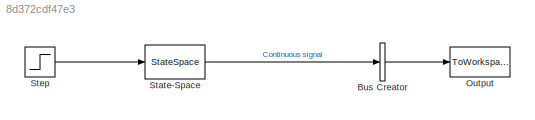
MODEL slx_8d372cdf47e3
KIND model
CONFIG StopFcn = save(wSaveFileName,wSaveFileName)
BLOCK [BusCreator] Bus Creator
  DisplayOption = bar
  Inputs = 1
  Ports = [1, 1]
BLOCK [ToWorkspace] Output
  FixptAsFi = on
  MaxDataPoints = inf
  Ports = [1]
  SampleTime = -1
  Save2DSignal = 3-D array (concatenate along third dimension)
  SaveFormat = Timeseries
  VariableName = SimOutput
BLOCK [StateSpace] State-Space
  A = A
  B = B
  C = C
  D = D
  Ports = [1, 1]
  X0 = X0
BLOCK [Step] Step
  SampleTime = 0
  Time = 0
LINE Bus Creator:1 -> Output:1
LINE State-Space:1 -> Bus Creator:1
LINE Step:1 -> State-Space:1
